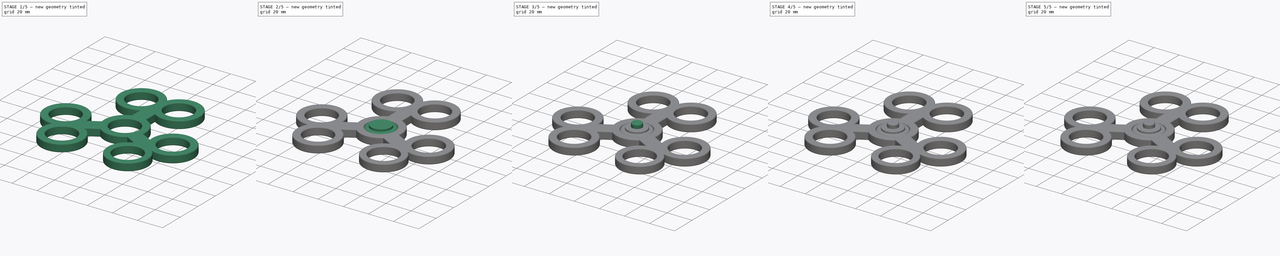
[diagram: build sequence overview — one tinted view per stage of 5, left to right]
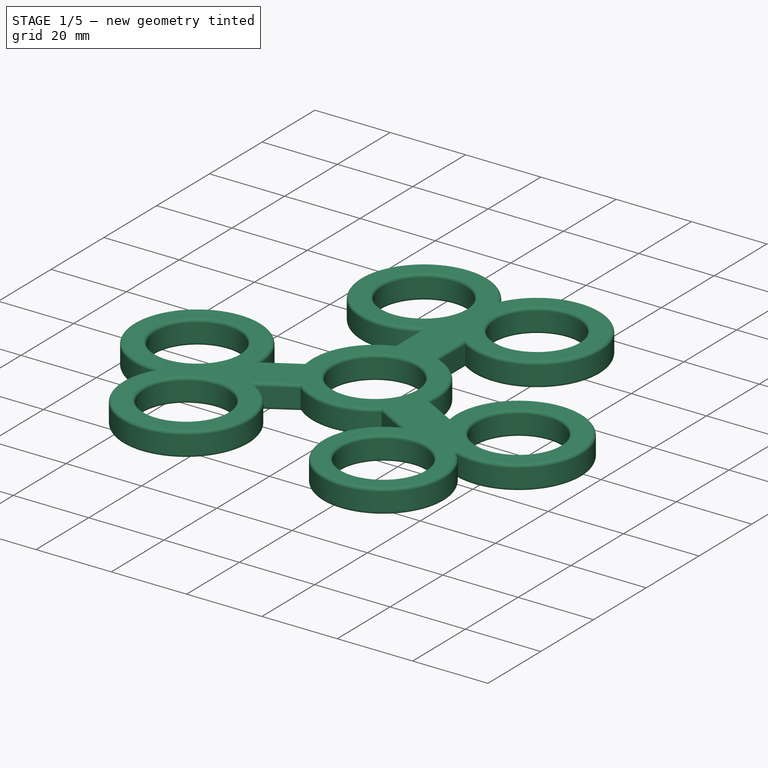
[diagram: stage 1 of 5 — iso view after this stage's code; geometry added in this stage tinted green]
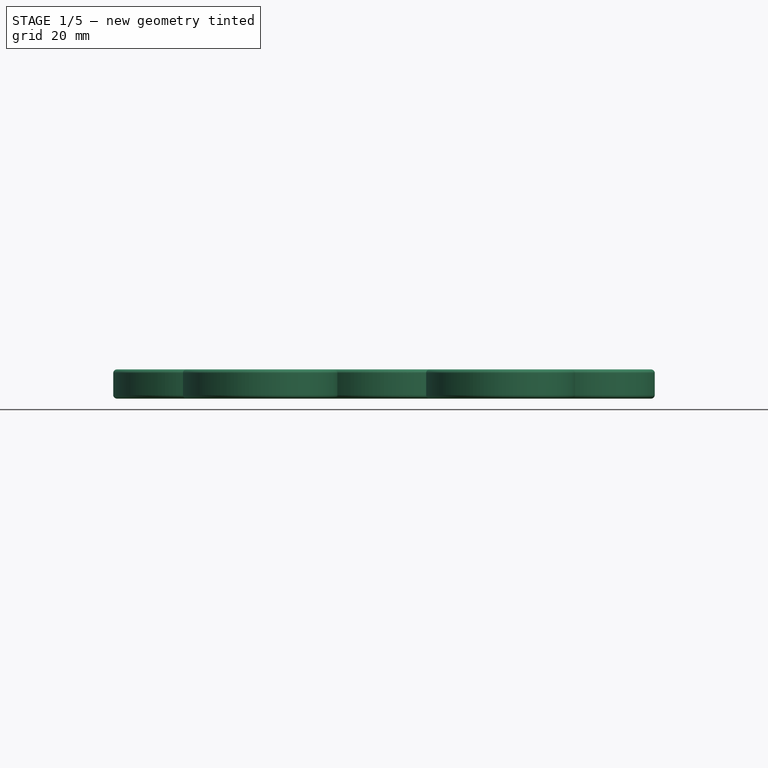
[diagram: stage 1 of 5 — front view after this stage's code; geometry added in this stage tinted green]
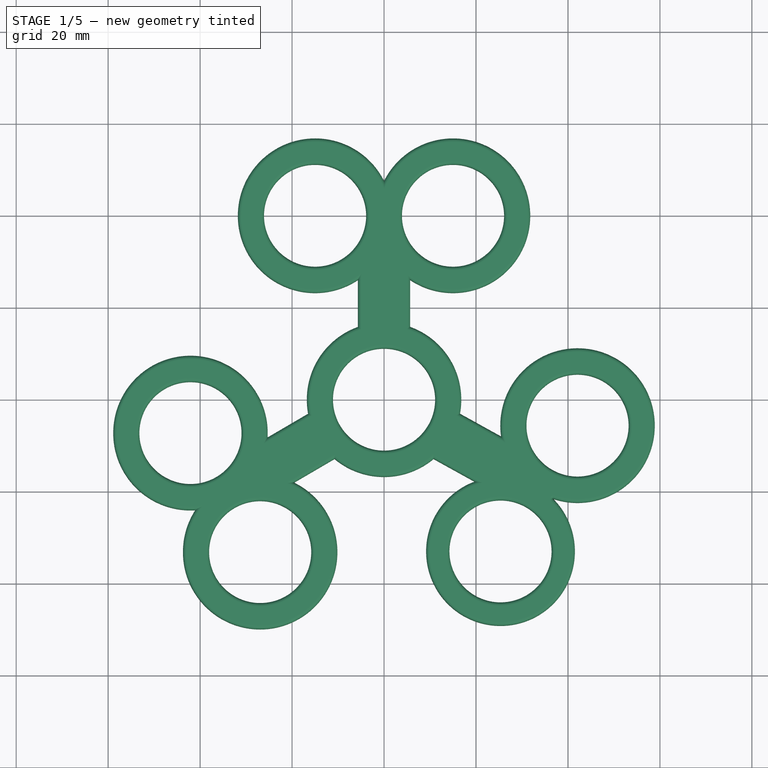
[diagram: stage 1 of 5 — top view after this stage's code; geometry added in this stage tinted green]
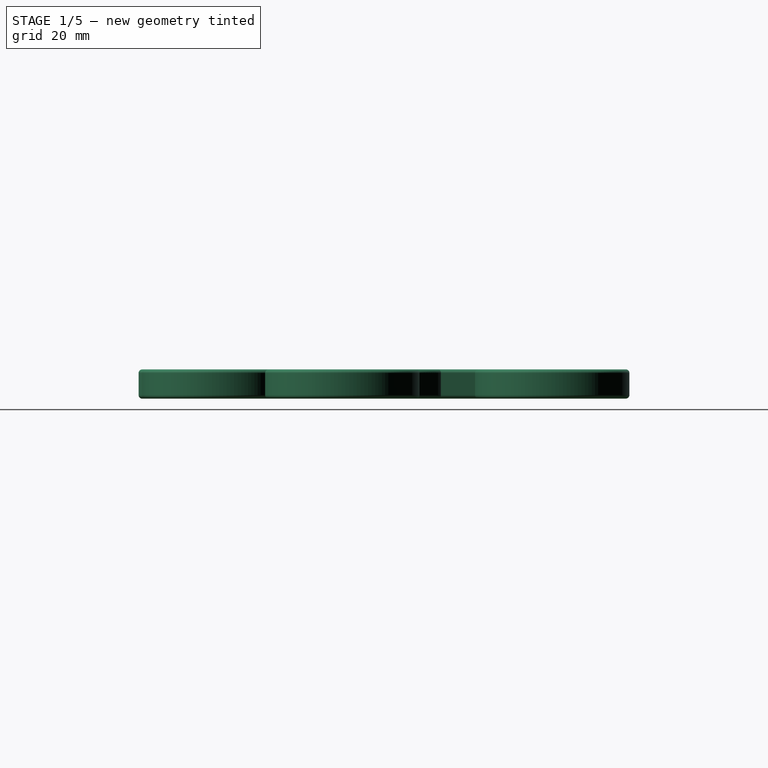
[diagram: stage 1 of 5 — right view after this stage's code; geometry added in this stage tinted green]
FCSTD DOCUMENT  (FreeCAD 0.16R6706 (Git))
Label: six-bearing-spinner
License: All rights reserved
LicenseURL: http://en.wikipedia.org/wiki/All_rights_reserved
objects: PartDesign::Fillet×10, Sketcher::SketchObject×5, PartDesign::Pad×5, Part::Cylinder×2
note: 27 computed .brp shape members not serialized (recipe doc carries the construction recipe); baked Part::Feature solids carry a one-line shape summary decoded from their .brp

FEATURE [Sketcher::SketchObject] Sketch
  sketch-geometry (36):
    g0: Circle CenterX=-15 CenterY=40 CenterZ=0 NormalX=0 NormalY=0 NormalZ=1 Radius=11.1125
    g1: Circle CenterX=15 CenterY=40 CenterZ=0 NormalX=0 NormalY=0 NormalZ=1 Radius=11.1125
    g2: Circle CenterX=42.0778 CenterY=-5.64337 CenterZ=0 NormalX=0 NormalY=0 NormalZ=1 Radius=11.1125
    g3: Circle CenterX=-42.0989 CenterY=-7.26536 CenterZ=0 NormalX=0 NormalY=0 NormalZ=1 Radius=11.1125
    g4: Circle CenterX=-26.9396 CenterY=-33.1535 CenterZ=0 NormalX=0 NormalY=0 NormalZ=1 Radius=11.1125
    g5: Circle CenterX=0 CenterY=0 CenterZ=0 NormalX=0 NormalY=0 NormalZ=1 Radius=11.1125
    g6: GeomPoint [constr] X=-34.5193 Y=-20.2094 Z=0
    g7: GeomPoint [constr] X=35.2107 Y=-18.9792 Z=0
    g8: GeomPoint [constr] X=0 Y=40 Z=0
    g9: ArcOfCircle CenterX=-15 CenterY=40 CenterZ=0 NormalX=0 NormalY=0 NormalZ=1 Radius=16.7939 StartAngle=1.5708 EndAngle=4.67607
    g10: ArcOfCircle CenterX=15 CenterY=40 CenterZ=0 NormalX=0 NormalY=0 NormalZ=1 Radius=16.7939 StartAngle=4.67607 EndAngle=7.81766
    g11: Circle CenterX=25.3256 CenterY=-33.0087 CenterZ=0 NormalX=0 NormalY=0 NormalZ=1 Radius=11.1125
    g12: GeomPoint [constr] X=-41.0363 Y=-24.0256 Z=0
    g13: ArcOfCircle CenterX=-42.0989 CenterY=-7.26536 CenterZ=0 NormalX=0 NormalY=0 NormalZ=1 Radius=16.7939 StartAngle=0.583022 EndAngle=4.7757
    g14: GeomPoint [constr] X=36.7658 Y=-21.575 Z=0
    g15: ArcOfCircle CenterX=25.3256 CenterY=-33.0087 CenterZ=0 NormalX=0 NormalY=0 NormalZ=1 Radius=16.1743 StartAngle=2.54396 EndAngle=7.0683
    g16: ArcOfCircle CenterX=42.0778 CenterY=-5.64337 CenterZ=0 NormalX=0 NormalY=0 NormalZ=1 Radius=16.7939 StartAngle=4.39056 EndAngle=8.95357
    g17: ArcOfCircle CenterX=-26.9396 CenterY=-33.1535 CenterZ=0 NormalX=0 NormalY=0 NormalZ=1 Radius=16.7939 StartAngle=2.56696 EndAngle=6.86621
    g18: GeomPoint [constr] X=0 Y=47.5522 Z=0
    g19: ArcOfCircle CenterX=-15 CenterY=40 CenterZ=0 NormalX=0 NormalY=0 NormalZ=1 Radius=16.7939 StartAngle=0.466425 EndAngle=1.5708
    g20: ArcOfCircle CenterX=15 CenterY=40 CenterZ=0 NormalX=0 NormalY=0 NormalZ=1 Radius=16.7939 StartAngle=1.53447 EndAngle=2.67517
    g21: ArcOfCircle CenterX=-8e-12 CenterY=-4.7e-11 CenterZ=0 NormalX=0 NormalY=0 NormalZ=1 Radius=16.7939 StartAngle=4.0163 EndAngle=5.40848
    g22: ArcOfCircle CenterX=3.9e-11 CenterY=-2.2e-11 CenterZ=0 NormalX=0 NormalY=0 NormalZ=1 Radius=16.7939 StartAngle=6.0987 EndAngle=7.50887
    g23: ArcOfCircle CenterX=-4e-11 CenterY=-2.1e-11 CenterZ=0 NormalX=0 NormalY=0 NormalZ=1 Radius=16.7939 StartAngle=1.91591 EndAngle=3.32607
    g24: LineSegment StartX=-5.6814 StartY=26.0286 StartZ=0 EndX=-5.6814 EndY=15.8037 EndZ=0
    g25: LineSegment StartX=5.6814 StartY=15.8037 StartZ=0 EndX=5.6814 EndY=26.0286 EndZ=0
    g26: ArcOfCircle CenterX=-15 CenterY=40 CenterZ=0 NormalX=0 NormalY=0 NormalZ=1 Radius=16.7939 StartAngle=4.67607 EndAngle=5.30061
    g27: ArcOfCircle CenterX=15 CenterY=40 CenterZ=0 NormalX=0 NormalY=0 NormalZ=1 Radius=16.7939 StartAngle=4.12417 EndAngle=4.67607
    g28: ArcOfCircle CenterX=25.3256 CenterY=-33.0087 CenterZ=0 NormalX=0 NormalY=0 NormalZ=1 Radius=16.1743 StartAngle=1.92508 EndAngle=2.54396
    g29: ArcOfCircle CenterX=42.0778 CenterY=-5.64337 CenterZ=0 NormalX=0 NormalY=0 NormalZ=1 Radius=16.7939 StartAngle=2.67038 EndAngle=3.28435
    g30: LineSegment StartX=10.7686 StartY=-12.8869 StartZ=0 EndX=19.7144 EndY=-17.8389 EndZ=0
    g31: LineSegment StartX=25.4547 StartY=-8.0327 StartZ=0 EndX=16.5089 EndY=-3.08063 EndZ=0
    g32: ArcOfCircle CenterX=-42.0989 CenterY=-7.26536 CenterZ=0 NormalX=0 NormalY=0 NormalZ=1 Radius=16.7939 StartAngle=6.2248 EndAngle=6.86621
    g33: ArcOfCircle CenterX=-26.9396 CenterY=-33.1535 CenterZ=0 NormalX=0 NormalY=0 NormalZ=1 Radius=16.7939 StartAngle=0.583022 EndAngle=1.11805
    g34: LineSegment StartX=-25.3336 StartY=-8.24538 StartZ=0 EndX=-16.5089 EndY=-3.08063 EndZ=0
    g35: LineSegment StartX=-19.5933 StartY=-18.0516 StartZ=0 EndX=-10.7686 EndY=-12.8869 EndZ=0
  constraints (90):
    c: Radius(g0) = 11.1125
    c: Radius(g1) = 11.1125
    c: Radius(g2) = 11.1125
    c: Radius(g4) = 11.1125
    c: Radius(g3) = 11.1125
    c: Coincident(g5,g-1)
    c: Radius(g5) = 11.1125
    c: Distance(g3,g4) = 30
    c: Distance(g0,g1) = 30
    c: Distance(g6,g4) = 15
    c: Distance(g6,g3) = 15
    c: Distance(g7,g2) = 15
    c: Distance(g0,g8) = 15
    c: Distance(g8,g1) = 15
    c: Distance(g-1,g6) = 40
    c: Distance(g-1,g7) = 40
    c: Distance(g-1,g8) = 40
    c: DistanceX(g-1,g8) = 0
    c: Distance(g15,g16) = 30
    c: Distance(g13,g17) = 30
    c: Distance(g9,g10) = 30
    c: Coincident(g9,g0)
    c: Coincident(g10,g1)
    c: Distance(g9,g0) = 16.7939
    c: Distance(g1,g10) = 16.7939
    c: Distance(g3,g13) = 16.7939
    c: Distance(g4,g17) = 16.7939
    c: Distance(g16,g2) = 16.7939
    c: Radius(g11) = 11.1125
    c: Angle(g10) = 3.14159
    c: Coincident(g13,g3)
    c: Coincident(g13,g12)
    c: Coincident(g15,g11)
    c: Coincident(g15,g14)
    c: Coincident(g16,g2)
    c: Coincident(g16,g14)
    c: Coincident(g17,g4)
    c: Coincident(g17,g12)
    c: PointOnObject(g18,g-2)
    c: Coincident(g19,g0)
    c: Coincident(g19,g9)
    c: Coincident(g19,g18)
    c: Coincident(g20,g1)
    c: Coincident(g20,g10)
    c: Coincident(g20,g18)
    c: Coincident(g21,g-1)
    c: Radius(g21) = 16.7939
    c: Coincident(g22,g-1)
    c: Radius(g22) = 16.7939
    c: Coincident(g23,g-1)
    c: Vertical(g24)
    c: Vertical(g25)
    c: DistanceX(g24,g25) = 11.3628
    c: Equal(g25,g24)
    c: DistanceY(g25,g24) = 0
    c: Coincident(g22,g25)
    c: Coincident(g23,g24)
    c: Coincident(g26,g0)
    c: Coincident(g26,g9)
    c: Coincident(g26,g24)
    c: Coincident(g27,g1)
    c: Coincident(g27,g10)
    c: Coincident(g27,g25)
    c: Coincident(g28,g11)
    c: Coincident(g28,g15)
    c: Coincident(g29,g2)
    c: Coincident(g29,g16)
    c: Coincident(g30,g21)
    c: Coincident(g30,g28)
    c: Coincident(g31,g29)
    c: Coincident(g31,g22)
    c: Parallel(g31,g30)
    c: Coincident(g32,g3)
    c: Coincident(g32,g13)
    c: Coincident(g33,g4)
    c: Coincident(g33,g17)
    c: Coincident(g34,g32)
    c: Coincident(g34,g23)
    c: Coincident(g35,g33)
    c: Coincident(g35,g21)
    c: Parallel(g34,g35)
    c: Distance(g23,g21) = 11.3628
    c: Distance(g21,g22) = 11.3628
    c: Equal(g34,g24)
    c: Equal(g34,g35)
    c: Equal(g35,g30)
    c: Equal(g31,g25)
    c: DistanceY(g16,g13) = 0
    c: DistanceY(g15,g17) = 0
    c: DistanceY(g21,g21) = 0
FEATURE [PartDesign::Pad] Pad
  Length = 6.35
  Length2 = 100
  Sketch = -> Sketch
  Type = 0
FEATURE [PartDesign::Fillet] Fillet
  Base = -> Pad [Edge4,Edge7,Edge10,Edge13,Edge16,Edge19,Edge22,Edge25,Edge28,Edge31,Edge34,Edge37,Edge40,Edge43,Edge46,Edge49,Edge52,Edge55,Edge58,Edge61,Edge64,Edge67,Edge69,Edge72,Edge75,Edge78,Edge81,Edge84,Edge87,Edge90]
  Radius = 0.79375
FEATURE [PartDesign::Fillet] Fillet010  label="Spinner"
  Base = -> Fillet [Edge3,Edge11,Edge12,Edge13,Edge14,Edge15,Edge16,Edge17,Edge18,Edge19,Edge20,Edge21,Edge22,Edge23,Edge24,Edge25,Edge26,Edge27,Edge28,Edge29,Edge30,Edge31,Edge6,Edge32,Edge33,Edge34,Edge35,Edge36,Edge37,Edge38]
  Radius = 0.79375
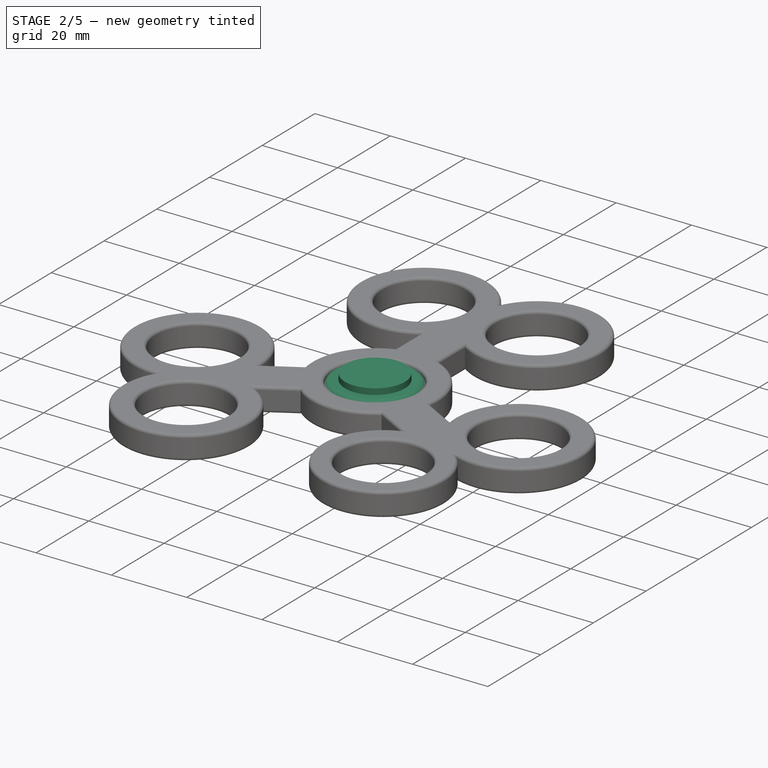
[diagram: stage 2 of 5 — iso view after this stage's code; geometry added in this stage tinted green]
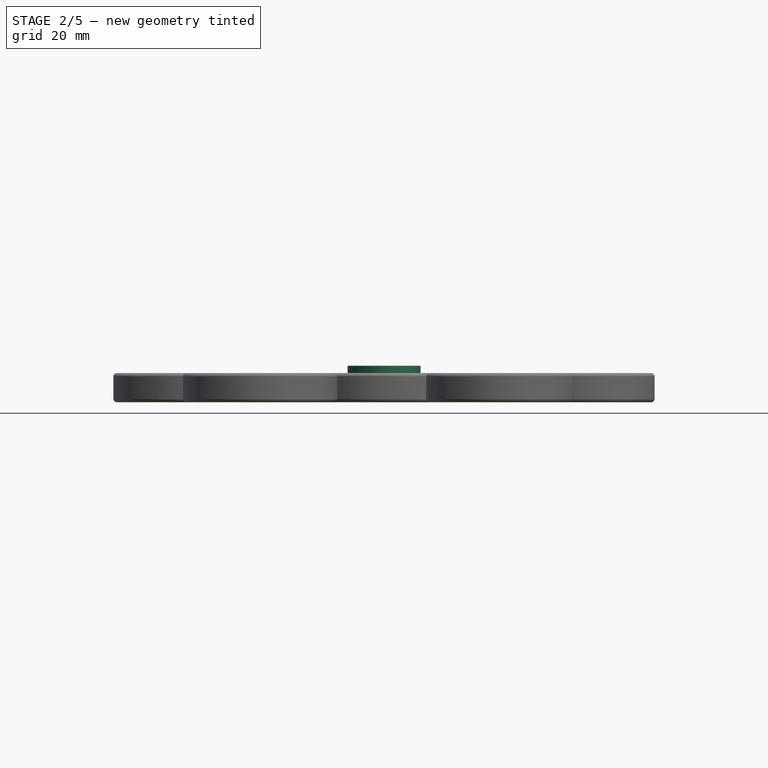
[diagram: stage 2 of 5 — front view after this stage's code; geometry added in this stage tinted green]
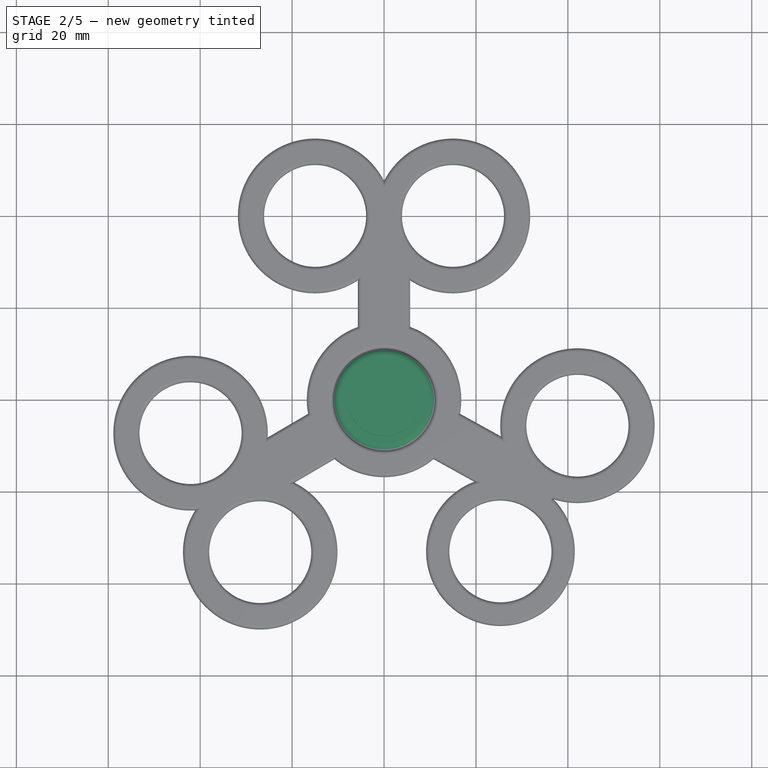
[diagram: stage 2 of 5 — top view after this stage's code; geometry added in this stage tinted green]
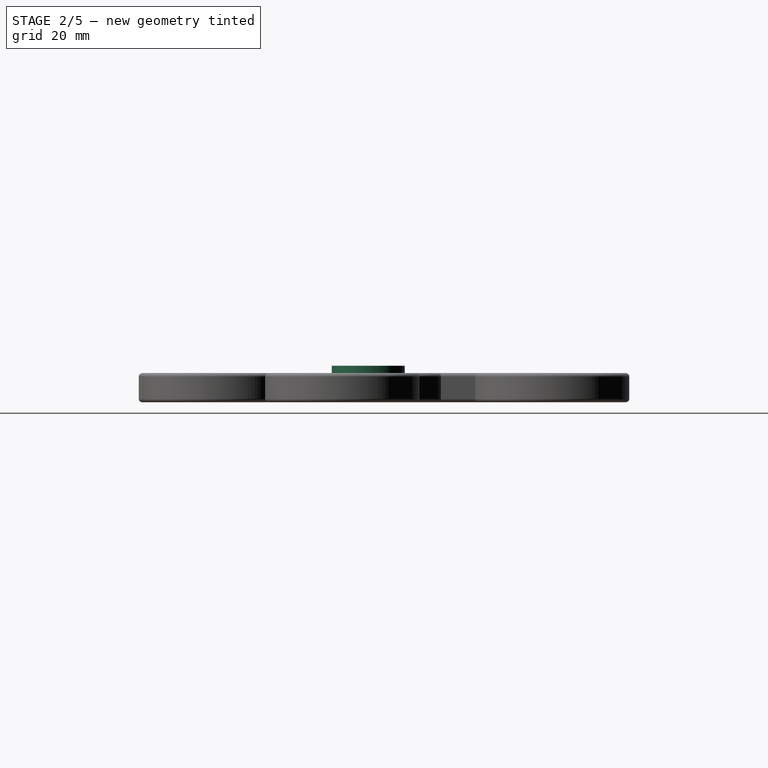
[diagram: stage 2 of 5 — right view after this stage's code; geometry added in this stage tinted green]
FEATURE [Part::Cylinder] Cylinder001
  Angle = 360
  Height = 6.35
  Radius = 11.1125
FEATURE [PartDesign::Fillet] Fillet006
  Base = -> Cylinder001 [Edge1]
  Radius = 1.5875
FEATURE [PartDesign::Fillet] Fillet007
  Base = -> Fillet006 [Edge3]
  Radius = 1.5875
FEATURE [Sketcher::SketchObject] Sketch003
  Placement = pos=(0,0,6.35) rot=(0,0,1;0rad)
  Support = -> Fillet007 [Face5]
  sketch-geometry (1):
    g0: Circle CenterX=0 CenterY=0 CenterZ=0 NormalX=0 NormalY=0 NormalZ=1 Radius=7.9375
  constraints (2):
    c: Coincident(g0,g-1)
    c: Radius(g0) = 7.9375
FEATURE [PartDesign::Pad] Pad003
  Length = 1.5875
  Length2 = 3.175
  Sketch = -> Sketch003
  Type = 0
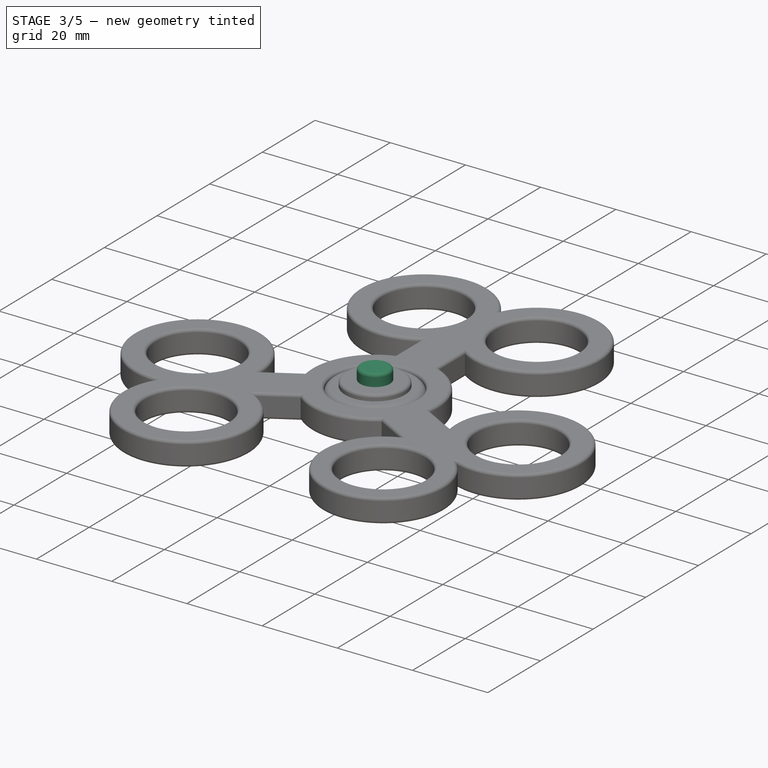
[diagram: stage 3 of 5 — iso view after this stage's code; geometry added in this stage tinted green]
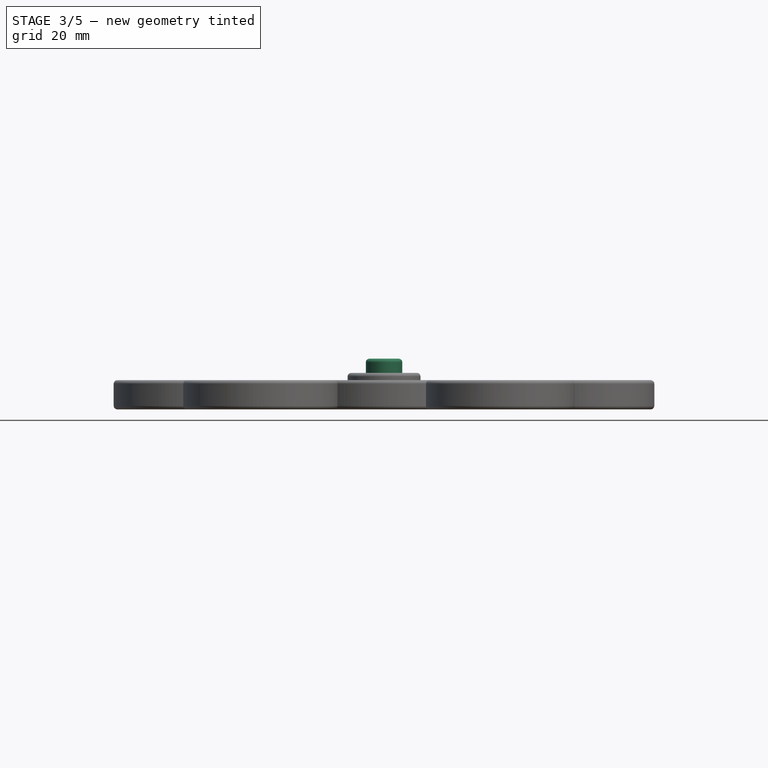
[diagram: stage 3 of 5 — front view after this stage's code; geometry added in this stage tinted green]
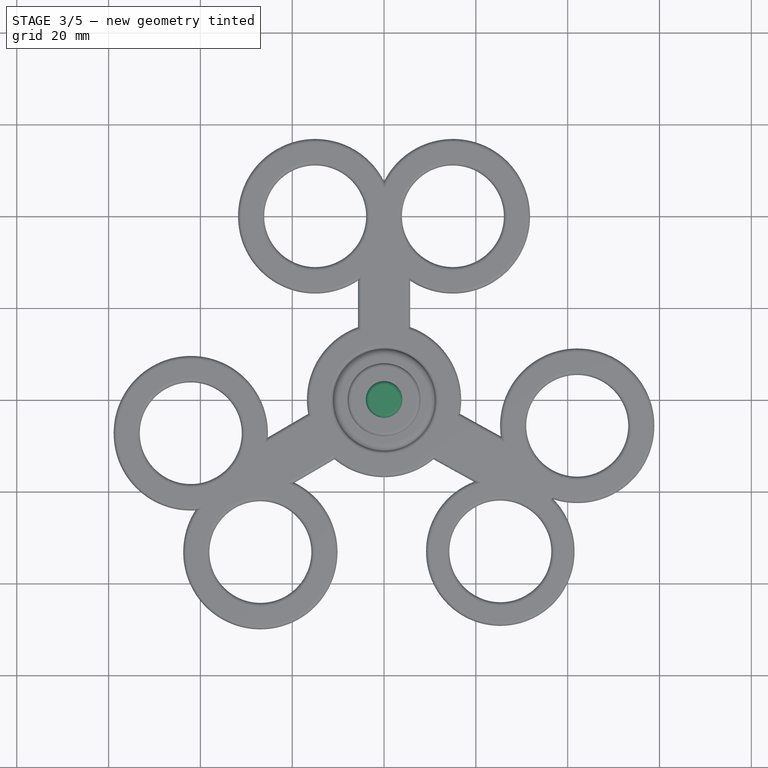
[diagram: stage 3 of 5 — top view after this stage's code; geometry added in this stage tinted green]
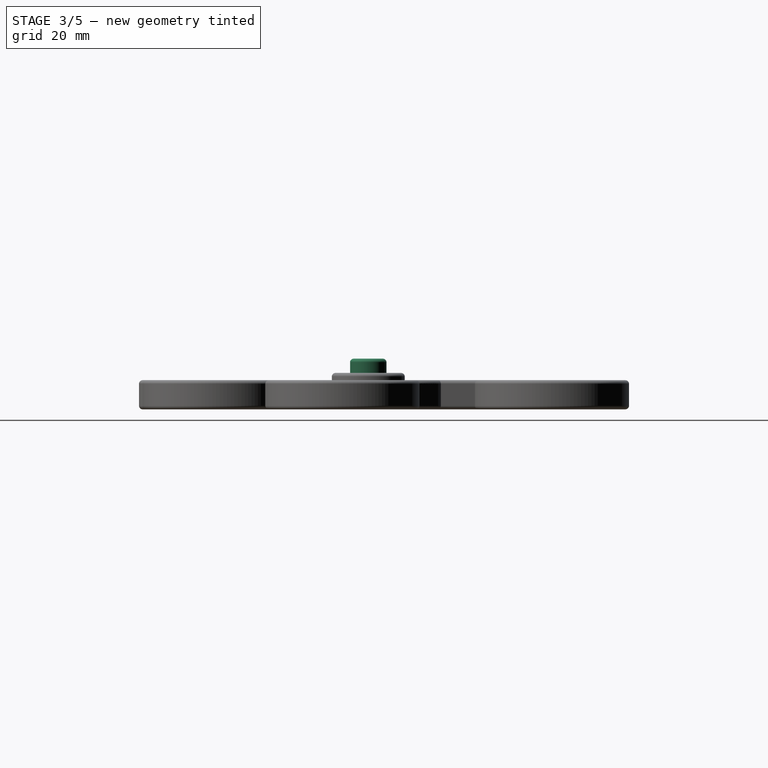
[diagram: stage 3 of 5 — right view after this stage's code; geometry added in this stage tinted green]
FEATURE [PartDesign::Fillet] Fillet008
  Base = -> Pad003 [Edge1]
  Radius = 0.79375
FEATURE [Sketcher::SketchObject] Sketch004
  Placement = pos=(0,0,7.9375) rot=(0,0,1;0rad)
  Support = -> Fillet008 [Face1]
  sketch-geometry (1):
    g0: Circle CenterX=0 CenterY=0 CenterZ=0 NormalX=0 NormalY=0 NormalZ=1 Radius=3.96875
  constraints (2):
    c: Coincident(g0,g-1)
    c: Radius(g0) = 3.96875
FEATURE [PartDesign::Pad] Pad004
  Length = 3.1
  Length2 = 100
  Sketch = -> Sketch004
  Type = 0
FEATURE [PartDesign::Fillet] Fillet009  label="Stand"
  Base = -> Pad004 [Edge1]
  Radius = 0.79375
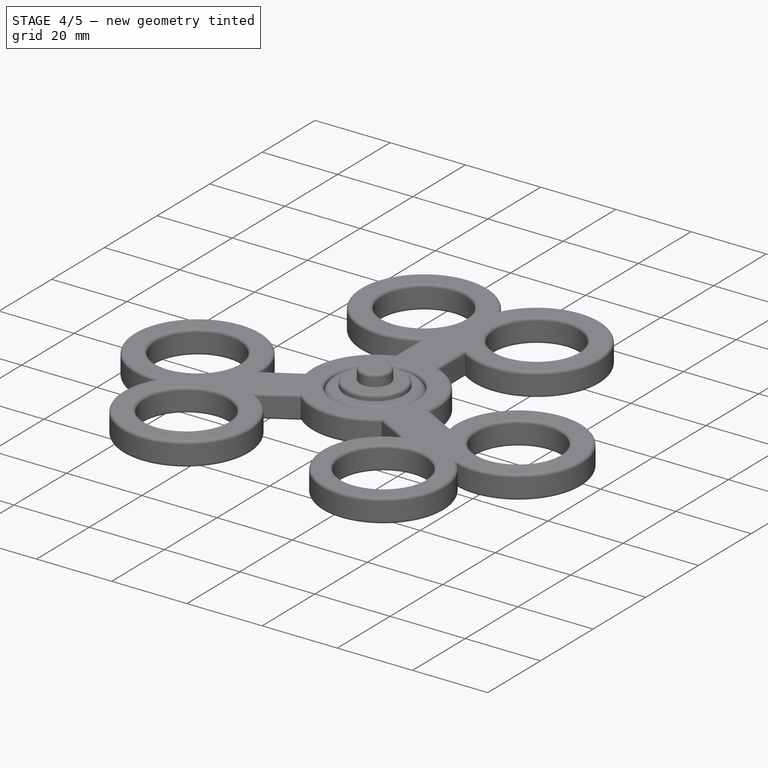
[diagram: stage 4 of 5 — iso view after this stage's code; geometry added in this stage tinted green]
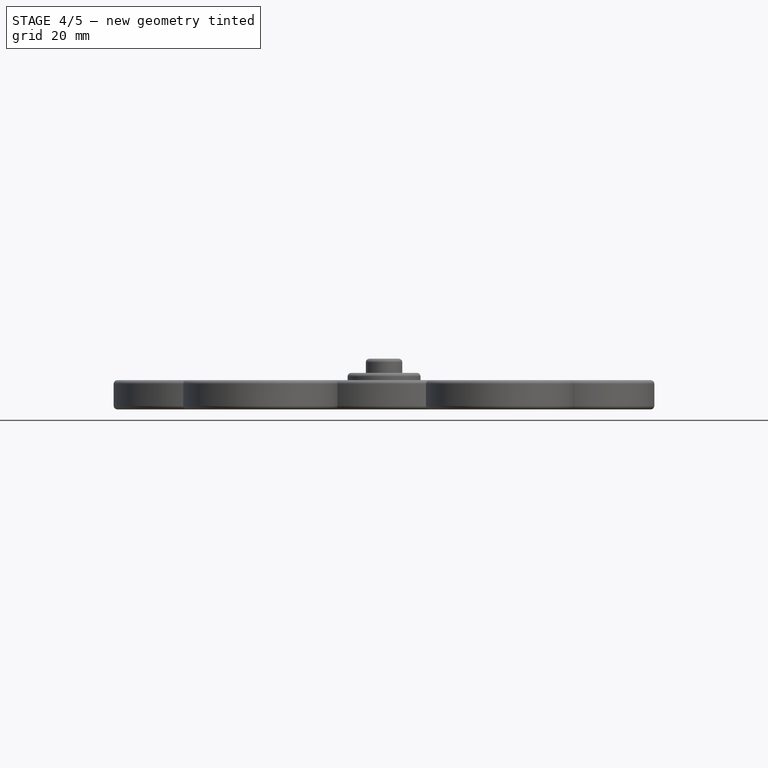
[diagram: stage 4 of 5 — front view after this stage's code; geometry added in this stage tinted green]
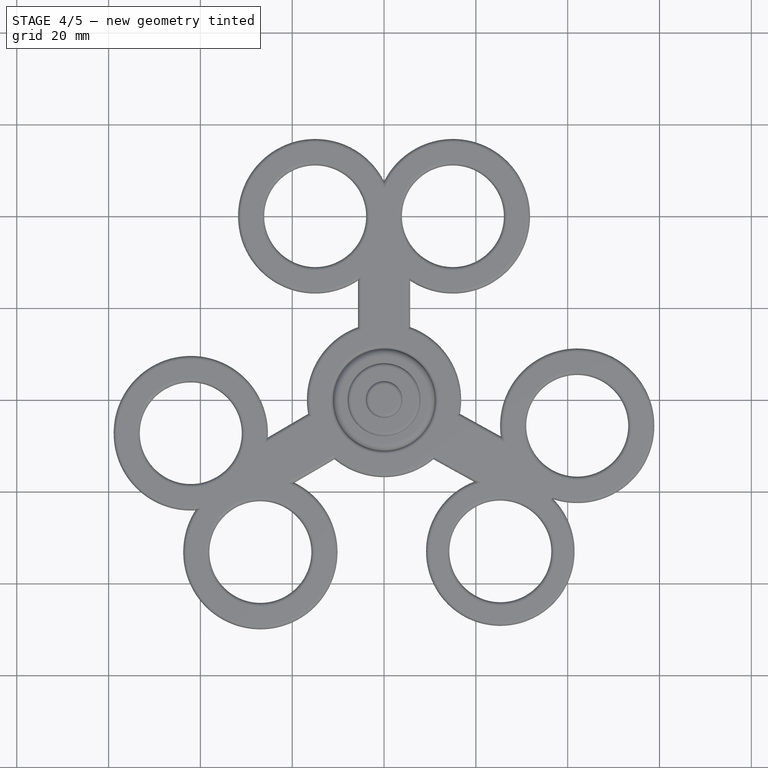
[diagram: stage 4 of 5 — top view after this stage's code; geometry added in this stage tinted green]
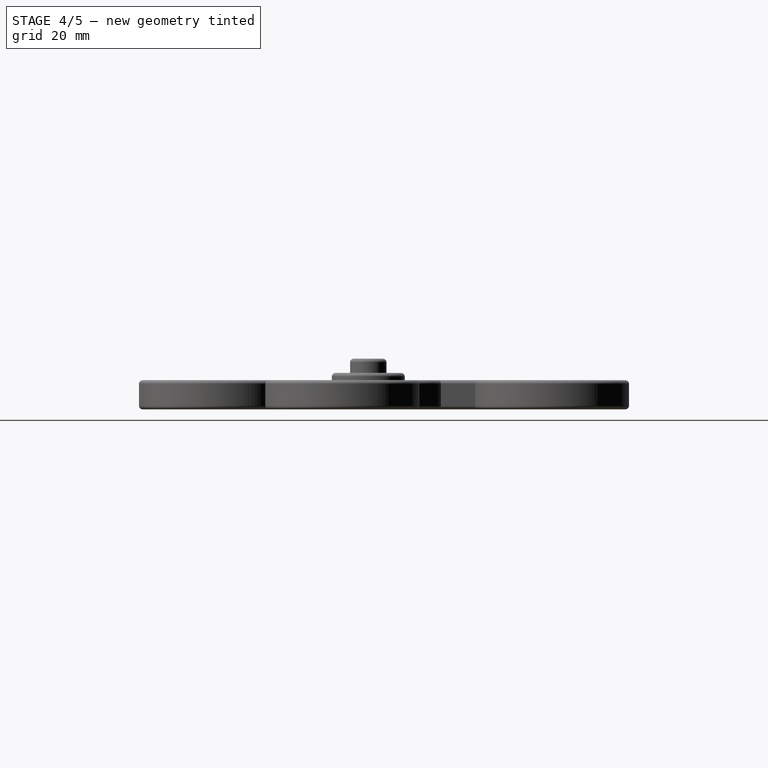
[diagram: stage 4 of 5 — right view after this stage's code; geometry added in this stage tinted green]
FEATURE [Part::Cylinder] Cylinder
  Angle = 360
  Height = 3.96875
  Radius = 11.1125
FEATURE [PartDesign::Fillet] Fillet002
  Base = -> Cylinder [Edge1]
  Radius = 1.5875
FEATURE [PartDesign::Fillet] Fillet003
  Base = -> Fillet002 [Edge3]
  Radius = 1.5875
FEATURE [Sketcher::SketchObject] Sketch001
  Placement = pos=(0,0,3.96875) rot=(0,0,1;0rad)
  Support = -> Fillet003 [Face5]
  sketch-geometry (1):
    g0: Circle CenterX=0 CenterY=0 CenterZ=0 NormalX=0 NormalY=0 NormalZ=1 Radius=7.9375
  constraints (2):
    c: Coincident(g0,g-1)
    c: Radius(g0) = 7.9375
FEATURE [PartDesign::Pad] Pad001
  Length = 1.5875
  Length2 = 3.175
  Sketch = -> Sketch001
  Type = 0
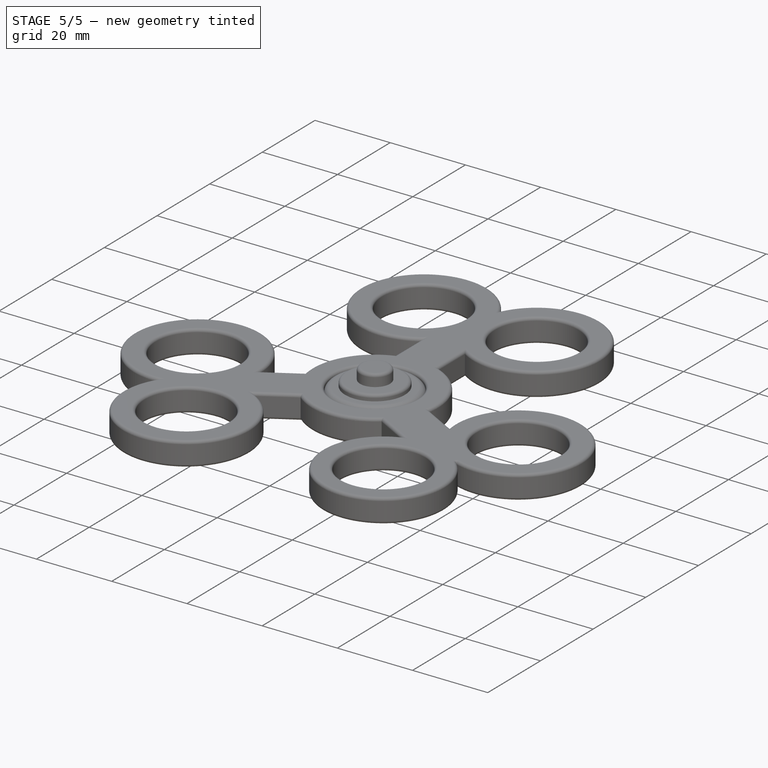
[diagram: stage 5 of 5 — iso view after this stage's code; geometry added in this stage tinted green]
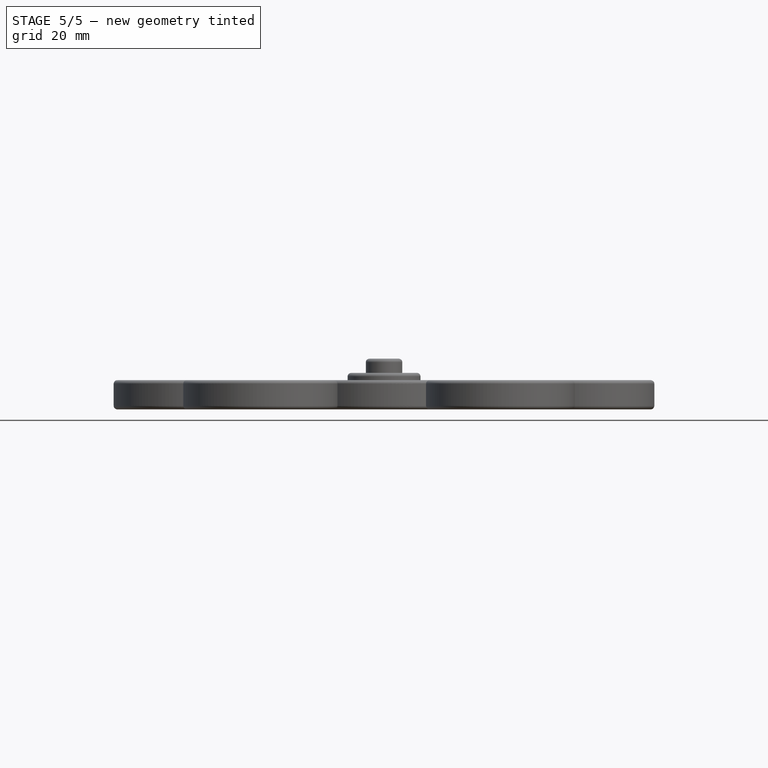
[diagram: stage 5 of 5 — front view after this stage's code; geometry added in this stage tinted green]
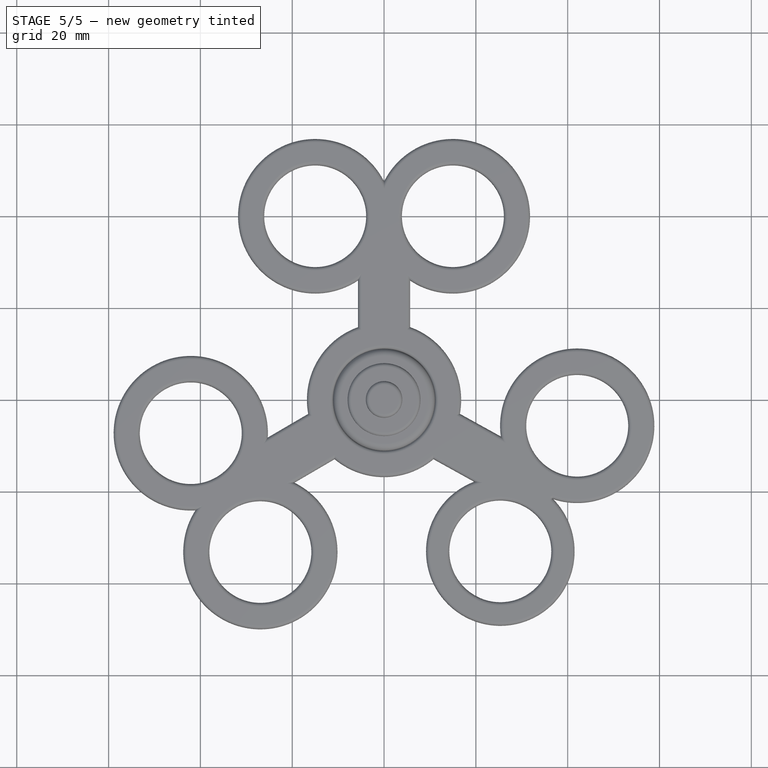
[diagram: stage 5 of 5 — top view after this stage's code; geometry added in this stage tinted green]
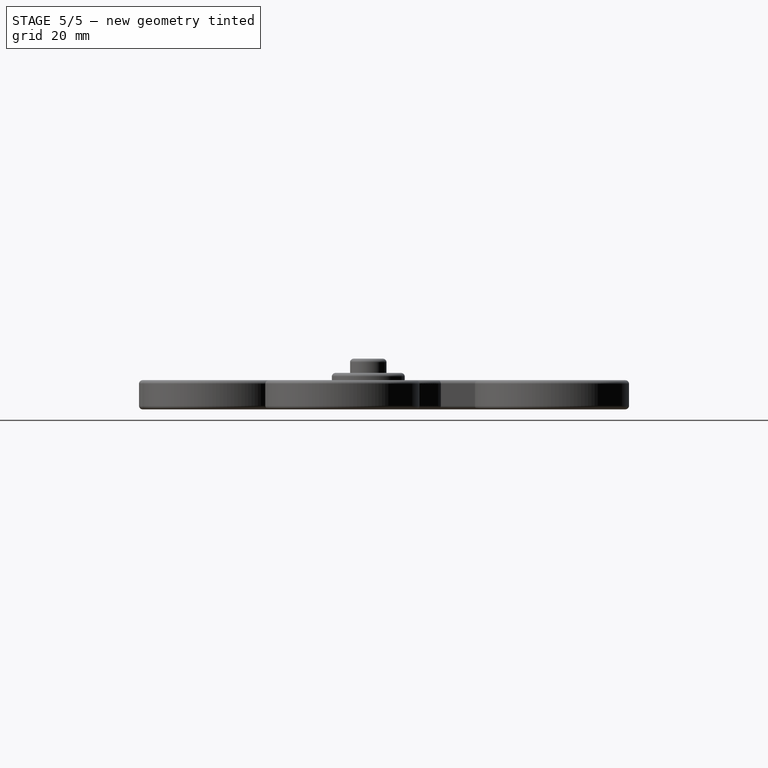
[diagram: stage 5 of 5 — right view after this stage's code; geometry added in this stage tinted green]
FEATURE [PartDesign::Fillet] Fillet004
  Base = -> Pad001 [Edge1]
  Radius = 0.79375
FEATURE [Sketcher::SketchObject] Sketch002
  Placement = pos=(0,0,5.55625) rot=(0,0,1;0rad)
  Support = -> Fillet004 [Face1]
  sketch-geometry (1):
    g0: Circle CenterX=0 CenterY=0 CenterZ=0 NormalX=0 NormalY=0 NormalZ=1 Radius=3.96875
  constraints (2):
    c: Coincident(g0,g-1)
    c: Radius(g0) = 3.96875
FEATURE [PartDesign::Pad] Pad002
  Length = 3.1
  Length2 = 100
  Sketch = -> Sketch002
  Type = 0
FEATURE [PartDesign::Fillet] Fillet005  label="Plug"
  Base = -> Pad002 [Edge1]
  Radius = 0.79375
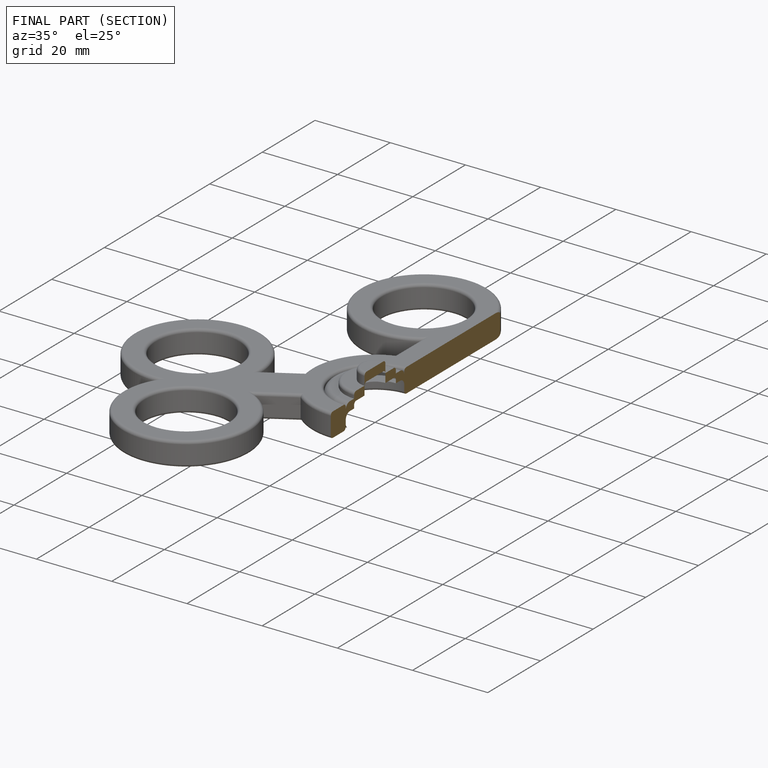
[diagram: finished part — half-section view (interior)]
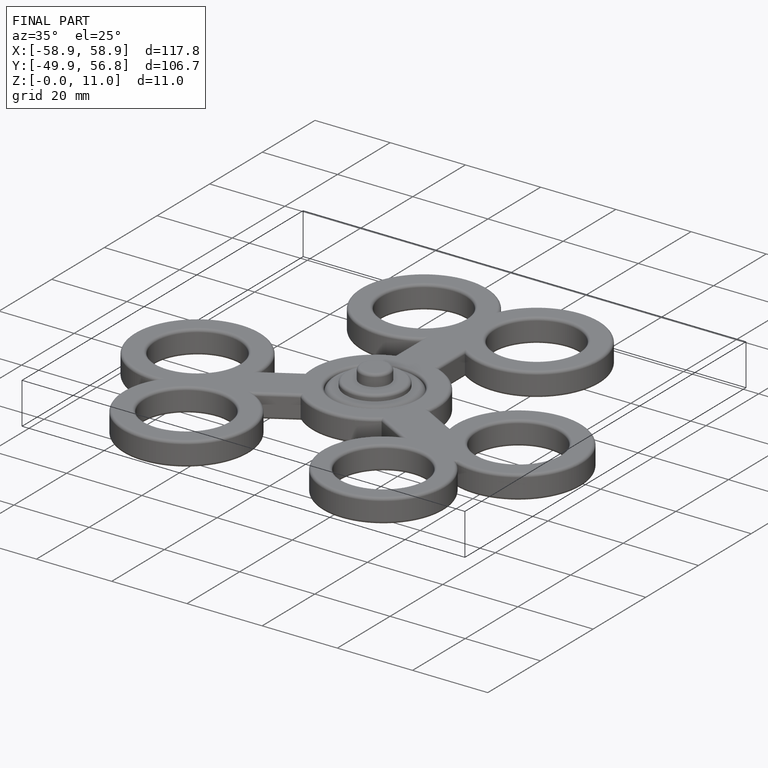
[diagram: finished part — iso view with bounding-box wireframe]
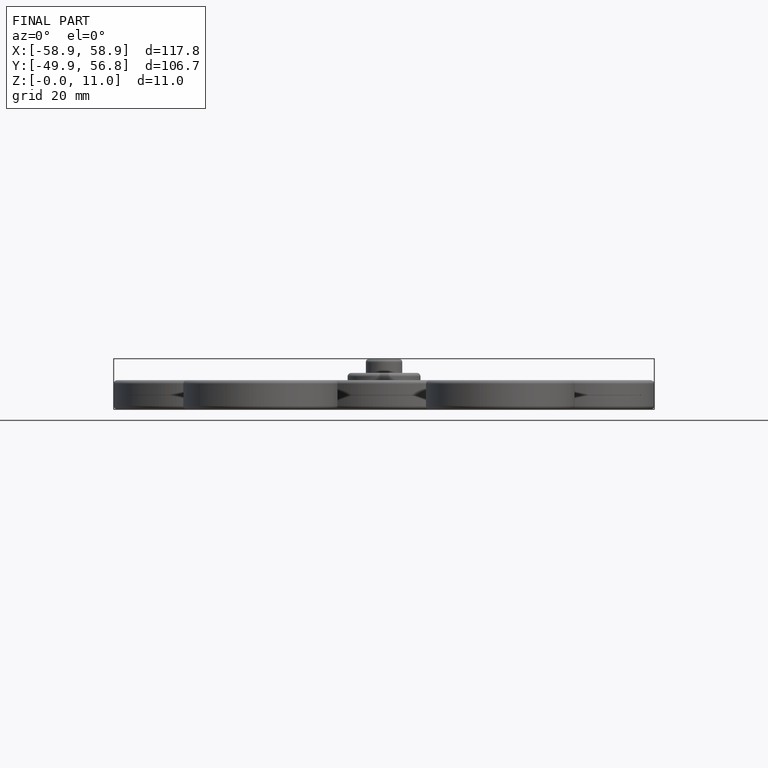
[diagram: finished part — front view with bounding-box wireframe]
